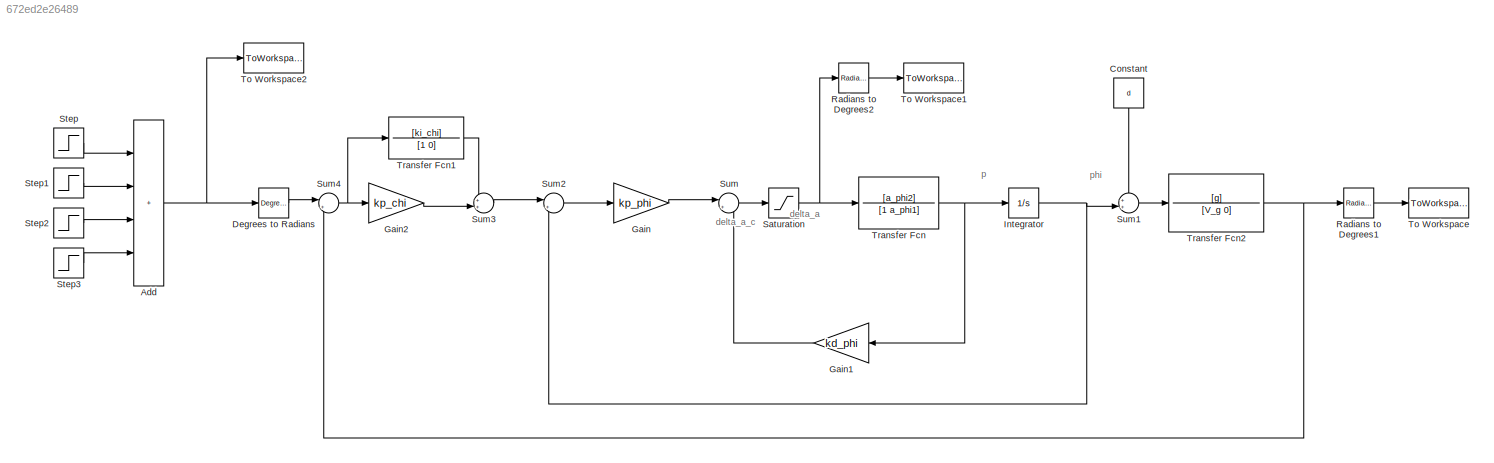
MODEL slx_672ed2e26489
KIND model
CONFIG AbsTol = auto
CONFIG EnableMultiTasking = off
CONFIG FixedStep = auto
CONFIG MaxStep = auto
CONFIG MinStep = auto
CONFIG RelTol = 1e-3
CONFIG SampleTimeConstraint = Unconstrained
CONFIG Solver = VariableStepAuto
CONFIG SolverName = VariableStepAuto
CONFIG StartTime = 0.0
CONFIG StopTime = 10.0
BLOCK [Sum] Add
  IconShape = rectangular
  Inputs = ++++
  Ports = [4, 1]
BLOCK [Constant] Constant
  NameLocation = left
  Value = d
BLOCK [Reference] Degrees to Radians  REF=simulink_extras/Transformations/Degrees to
Radians
  Ports = [1, 1]
  SourceBlock = simulink_extras/Transformations/Degrees to\nRadians
  SourceProductBaseCode = SL
  SourceType = DegreesToRadians
BLOCK [Gain] Gain
  Gain = kp_phi
BLOCK [Gain] Gain1
  Gain = kd_phi
  NameLocation = top
BLOCK [Gain] Gain2
  Gain = kp_chi
BLOCK [Integrator] Integrator
  Ports = [1, 1]
BLOCK [Reference] Radians to Degrees1  REF=simulink_extras/Transformations/Radians
to Degrees
  Ports = [1, 1]
  SourceBlock = simulink_extras/Transformations/Radians\nto Degrees
  SourceProductBaseCode = SL
  SourceType = RadiansToDegrees
BLOCK [Reference] Radians to Degrees2  REF=simulink_extras/Transformations/Radians
to Degrees
  Ports = [1, 1]
  SourceBlock = simulink_extras/Transformations/Radians\nto Degrees
  SourceProductBaseCode = SL
  SourceType = RadiansToDegrees
BLOCK [Saturate] Saturation
  LowerLimit = -pi/6
  UpperLimit = pi/6
BLOCK [Step] Step
  After = 7.5
  SampleTime = 0
  Time = 100
BLOCK [Step] Step1
  After = 7.5
  SampleTime = 0
  Time = 200
BLOCK [Step] Step2
  After = -7.5
  SampleTime = 0
  Time = 300
BLOCK [Step] Step3
  After = 0
  SampleTime = 0
  Time = 400
BLOCK [Sum] Sum
  Inputs = |+-
  Ports = [2, 1]
BLOCK [Sum] Sum1
  Inputs = ++|
  Ports = [2, 1]
BLOCK [Sum] Sum2
  Inputs = |+-
  Ports = [2, 1]
BLOCK [Sum] Sum3
  Inputs = ++|
  Ports = [2, 1]
BLOCK [Sum] Sum4
  Inputs = |+-
  Ports = [2, 1]
BLOCK [ToWorkspace] To Workspace
  FixptAsFi = on
  MaxDataPoints = inf
  Ports = [1]
  SampleTime = -1
  SaveFormat = Timeseries
  VariableName = chi
BLOCK [ToWorkspace] To Workspace1
  FixptAsFi = on
  MaxDataPoints = inf
  Ports = [1]
  SampleTime = -1
  SaveFormat = Timeseries
  VariableName = delta_a
BLOCK [ToWorkspace] To Workspace2
  FixptAsFi = on
  MaxDataPoints = inf
  Ports = [1]
  SampleTime = -1
  SaveFormat = Timeseries
  VariableName = chi_c
BLOCK [TransferFcn] Transfer Fcn
  Denominator = [1 a_phi1]
  Numerator = [a_phi2]
BLOCK [TransferFcn] Transfer Fcn1
  Denominator = [1 0]
  Numerator = [ki_chi]
BLOCK [TransferFcn] Transfer Fcn2
  Denominator = [V_g 0]
  Numerator = [g]
ANNOTATION (root): delta_a
ANNOTATION (root): delta_a_c
ANNOTATION (root): p
ANNOTATION (root): phi
NET Add:1 -> Degrees to Radians:1, To Workspace2:1
LINE Constant:1 -> Sum1:1
LINE Degrees to Radians:1 -> Sum4:1
LINE Gain1:1 -> Sum:2
LINE Gain2:1 -> Sum3:2
LINE Gain:1 -> Sum:1
NET Integrator:1 -> Sum1:2, Sum2:2
LINE Radians to Degrees1:1 -> To Workspace:1
LINE Radians to Degrees2:1 -> To Workspace1:1
NET Saturation:1 -> Radians to Degrees2:1, Transfer Fcn:1
LINE Step1:1 -> Add:2
LINE Step2:1 -> Add:3
LINE Step3:1 -> Add:4
LINE Step:1 -> Add:1
LINE Sum1:1 -> Transfer Fcn2:1
LINE Sum2:1 -> Gain:1
LINE Sum3:1 -> Sum2:1
NET Sum4:1 -> Gain2:1, Transfer Fcn1:1
LINE Sum:1 -> Saturation:1
LINE Transfer Fcn1:1 -> Sum3:1
NET Transfer Fcn2:1 -> Radians to Degrees1:1, Sum4:2
NET Transfer Fcn:1 -> Gain1:1, Integrator:1
note: NET lines group one-source signal fan-out (src -> all destinations, sorted); 1:1 wires keep LINE
